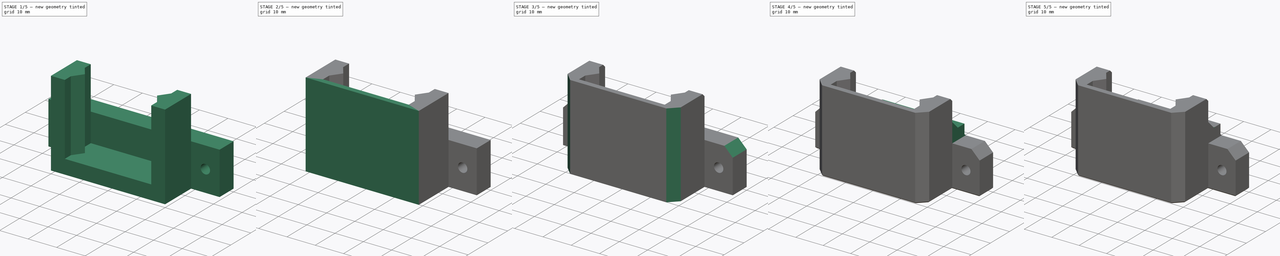
[diagram: build sequence overview — one tinted view per stage of 5, left to right]
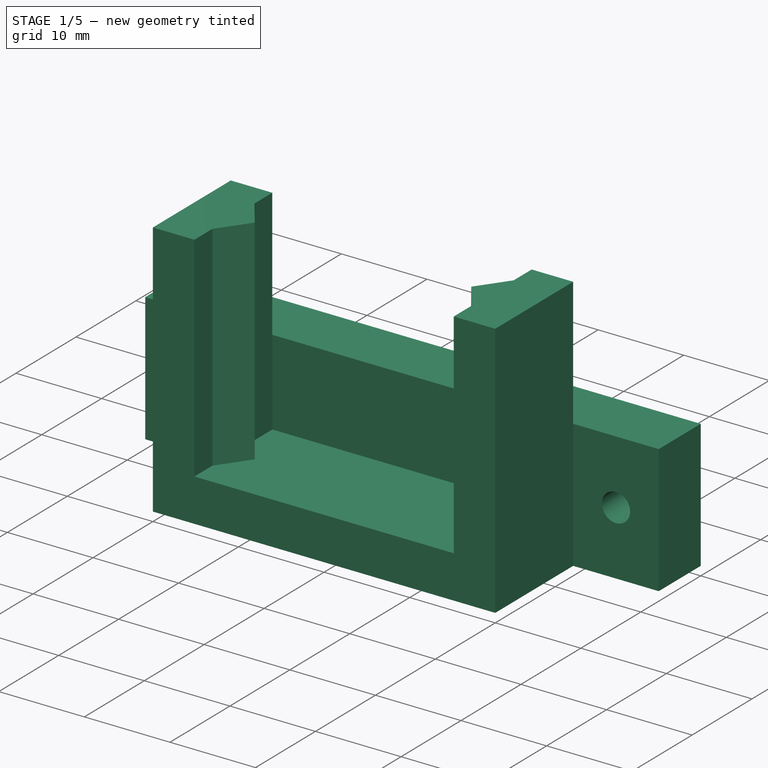
[diagram: stage 1 of 5 — iso view after this stage's code; geometry added in this stage tinted green]
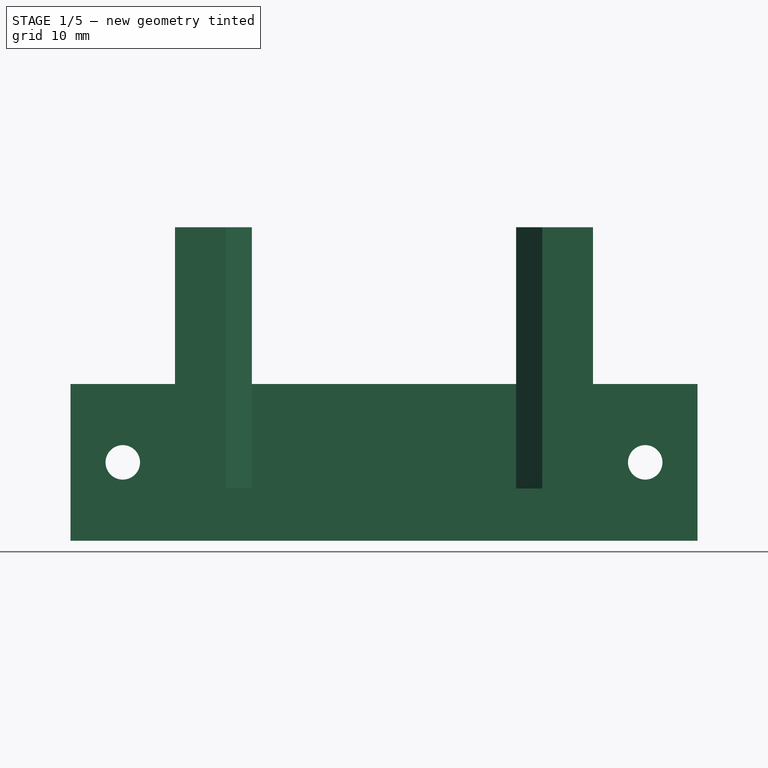
[diagram: stage 1 of 5 — front view after this stage's code; geometry added in this stage tinted green]
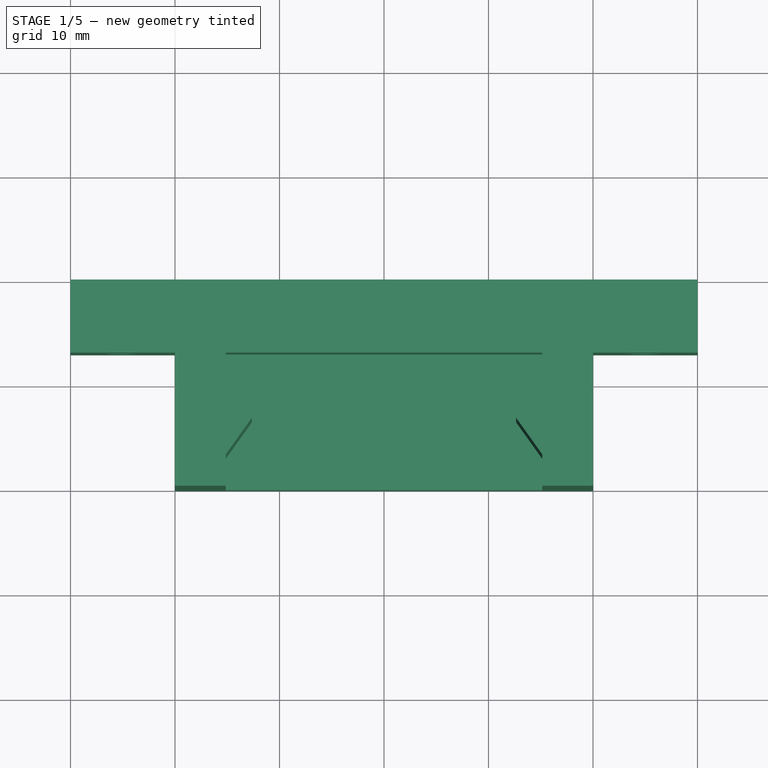
[diagram: stage 1 of 5 — top view after this stage's code; geometry added in this stage tinted green]
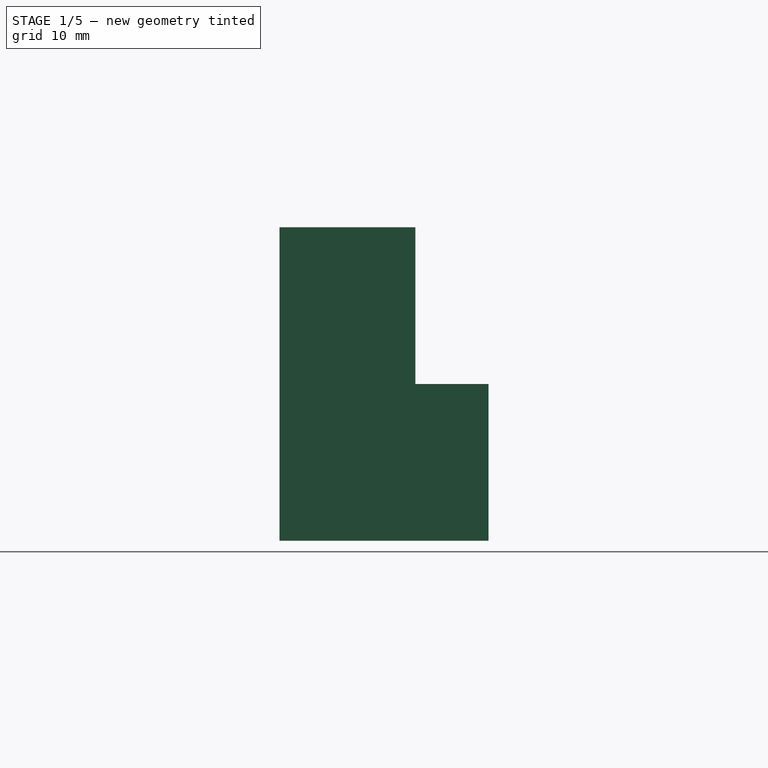
[diagram: stage 1 of 5 — right view after this stage's code; geometry added in this stage tinted green]
FCSTD DOCUMENT  (FreeCAD 0.19R24366 (Git))
Label: nozzle-brush-fixed
License: All rights reserved
LicenseURL: http://en.wikipedia.org/wiki/All_rights_reserved
objects: Sketcher::SketchObject×14, PartDesign::Pad×7, PartDesign::Pocket×7, PartDesign::Chamfer×4, PartDesign::Body×2, PartDesign::Mirrored×1
note: 53 computed .brp shape members not serialized (recipe doc carries the construction recipe); baked Part::Feature solids carry a one-line shape summary decoded from their .brp

FEATURE [Sketcher::SketchObject] Sketch
  FullyConstrained = true
  MapMode = 5
  Placement = pos=(0,0,0) rot=(1,0,0;1.5708rad)
  Support = -> [XZ_Plane]
  sketch-geometry (6):
    g0: LineSegment StartX=-30 StartY=0 StartZ=0 EndX=30 EndY=0 EndZ=0
    g1: LineSegment StartX=30 StartY=0 StartZ=0 EndX=30 EndY=15 EndZ=0
    g2: LineSegment StartX=30 StartY=15 StartZ=0 EndX=-30 EndY=15 EndZ=0
    g3: LineSegment StartX=-30 StartY=15 StartZ=0 EndX=-30 EndY=0 EndZ=0
    g4: Circle CenterX=-25 CenterY=7.5 CenterZ=0 NormalX=0 NormalY=0 NormalZ=1 AngleXU=0 Radius=1.65
    g5: Circle CenterX=25 CenterY=7.5 CenterZ=0 NormalX=0 NormalY=0 NormalZ=1 AngleXU=0 Radius=1.65
  constraints (18):
    c: Coincident(g0,g1)
    c: Coincident(g1,g2)
    c: Coincident(g2,g3)
    c: Coincident(g3,g0)
    c: Horizontal(g0)
    c: Horizontal(g2)
    c: Vertical(g1)
    c: Vertical(g3)
    c: PointOnObject(g0,g-1)
    c: Horizontal(g4,g5)
    c: DistanceY(g-1,g4) = 7.5
    c: Equal(g4,g5)
    c: Radius(g4) = 1.65
    c: DistanceX(g4,g-1) = 25
    c: DistanceX(g-1,g5) = 25
    c: DistanceY(g3,g3) = 15
    c: DistanceX(g2,g2) = 60
    c: DistanceX(g2,g-1) = 30
FEATURE [PartDesign::Pad] Pad
  Direction = (1,1,1)
  Length = 7
  Length2 = 100
  Placement = pos=(0,0,0) rot=(1,0,0;1.5708rad)
  Profile = -> Sketch
  Type = 0
FEATURE [Sketcher::SketchObject] Sketch001
  FullyConstrained = true
  MapMode = 5
  Placement = pos=(0,0,0) rot=(1,0,0;3.14159rad)
  Support = -> [Pad]
  sketch-geometry (4):
    g0: LineSegment StartX=-20 StartY=0 StartZ=0 EndX=20 EndY=0 EndZ=0
    g1: LineSegment StartX=20 StartY=0 StartZ=0 EndX=20 EndY=20 EndZ=0
    g2: LineSegment StartX=20 StartY=20 StartZ=0 EndX=-20 EndY=20 EndZ=0
    g3: LineSegment StartX=-20 StartY=20 StartZ=0 EndX=-20 EndY=0 EndZ=0
  constraints (12):
    c: Coincident(g0,g1)
    c: Coincident(g1,g2)
    c: Coincident(g2,g3)
    c: Coincident(g3,g0)
    c: Horizontal(g0)
    c: Horizontal(g2)
    c: Vertical(g1)
    c: Vertical(g3)
    c: PointOnObject(g0,g-1)
    c: DistanceX(g0,g-1) = 20
    c: DistanceX(g2,g2) = 40
    c: DistanceY(g3,g3) = 20
FEATURE [PartDesign::Pad] Pad001
  BaseFeature = -> Pad
  Direction = (1,1,1)
  Length = 5
  Length2 = 100
  Placement = pos=(0,0,0) rot=(1,0,0;1.5708rad)
  Profile = -> Sketch001
  Reversed = true
  Type = 0
FEATURE [Sketcher::SketchObject] Sketch002
  ExternalGeometry = -> [Pad001]
  FullyConstrained = true
  MapMode = 5
  Placement = pos=(0,5.6e-15,5) rot=(0,0,1;3.14159rad)
  Support = -> [Pad001]
  sketch-geometry (8):
    g0: LineSegment StartX=-20 StartY=20 StartZ=0 EndX=-15.15 EndY=20 EndZ=0
    g1: LineSegment StartX=-15.15 StartY=20 StartZ=0 EndX=-15.15 EndY=7 EndZ=0
    g2: LineSegment StartX=-15.15 StartY=7 StartZ=0 EndX=-20 EndY=7 EndZ=0
    g3: LineSegment StartX=-20 StartY=7 StartZ=0 EndX=-20 EndY=20 EndZ=0
    g4: LineSegment StartX=20 StartY=20 StartZ=0 EndX=15.15 EndY=20 EndZ=0
    g5: LineSegment StartX=15.15 StartY=20 StartZ=0 EndX=15.15 EndY=7 EndZ=0
    g6: LineSegment StartX=15.15 StartY=7 StartZ=0 EndX=20 EndY=7 EndZ=0
    g7: LineSegment StartX=20 StartY=7 StartZ=0 EndX=20 EndY=20 EndZ=0
  constraints (23):
    c: DistanceX(g-3,g-4) = 40
    c: Coincident(g0,g1)
    c: Coincident(g1,g2)
    c: Coincident(g2,g3)
    c: Coincident(g3,g0)
    c: Horizontal(g0)
    c: Horizontal(g2)
    c: Vertical(g1)
    c: Vertical(g3)
    c: Coincident(g0,g-3)
    c: Coincident(g4,g5)
    c: Coincident(g5,g6)
    c: Coincident(g6,g7)
    c: Coincident(g7,g4)
    c: Horizontal(g4)
    c: Horizontal(g6)
    c: Vertical(g5)
    c: Vertical(g7)
    c: Coincident(g4,g-4)
    c: Horizontal(g1,g5)
    c: Horizontal(g5,g-4)
    c: DistanceX(g0,g0) = 4.85
    c: Equal(g4,g0)
FEATURE [PartDesign::Pad] Pad002
  BaseFeature = -> Pad001
  Direction = (1,1,1)
  Length = 25
  Length2 = 100
  Placement = pos=(0,0,0) rot=(1,0,0;1.5708rad)
  Profile = -> Sketch002
  Type = 0
FEATURE [Sketcher::SketchObject] Sketch003
  ExternalGeometry = -> [Pad002]
  FullyConstrained = true
  MapMode = 5
  Placement = pos=(0,4.61e-14,30) rot=(0,0,1;3.14159rad)
  Support = -> [Pad002]
  sketch-geometry (6):
    g0: LineSegment StartX=-15.15 StartY=17 StartZ=0 EndX=-12.65 EndY=13.5 EndZ=0
    g1: LineSegment StartX=-12.65 StartY=13.5 StartZ=0 EndX=-15.15 EndY=10 EndZ=0
    g2: LineSegment StartX=-15.15 StartY=10 StartZ=0 EndX=-15.15 EndY=17 EndZ=0
    g3: LineSegment StartX=15.15 StartY=17 StartZ=0 EndX=12.65 EndY=13.5 EndZ=0
    g4: LineSegment StartX=12.65 StartY=13.5 StartZ=0 EndX=15.15 EndY=10 EndZ=0
    g5: LineSegment StartX=15.15 StartY=10 StartZ=0 EndX=15.15 EndY=17 EndZ=0
  constraints (19):
    c: PointOnObject(g0,g-3)
    c: Coincident(g0,g1)
    c: PointOnObject(g1,g-3)
    c: Coincident(g1,g2)
    c: Coincident(g2,g0)
    c: PointOnObject(g3,g-4)
    c: Coincident(g3,g4)
    c: PointOnObject(g4,g-4)
    c: Coincident(g4,g5)
    c: Coincident(g5,g3)
    c: Horizontal(g1,g4)
    c: Horizontal(g3,g0)
    c: Horizontal(g0,g3)
    c: DistanceY(g-3,g-3) = 13
    c: DistanceY(g0,g-3) = 3
    c: DistanceY(g-3,g1) = 3
    c: DistanceY(g0,g0) = 3.5
    c: DistanceX(g0,g0) = 2.5
    c: DistanceX(g3,g3) = 2.5
FEATURE [PartDesign::Pad] Pad003
  BaseFeature = -> Pad002
  Direction = (1,1,1)
  Length = 10
  Length2 = 100
  Placement = pos=(0,0,0) rot=(1,0,0;1.5708rad)
  Profile = -> Sketch003
  Reversed = true
  Type = 3
  UpToFace = -> Pad002 [Face26]
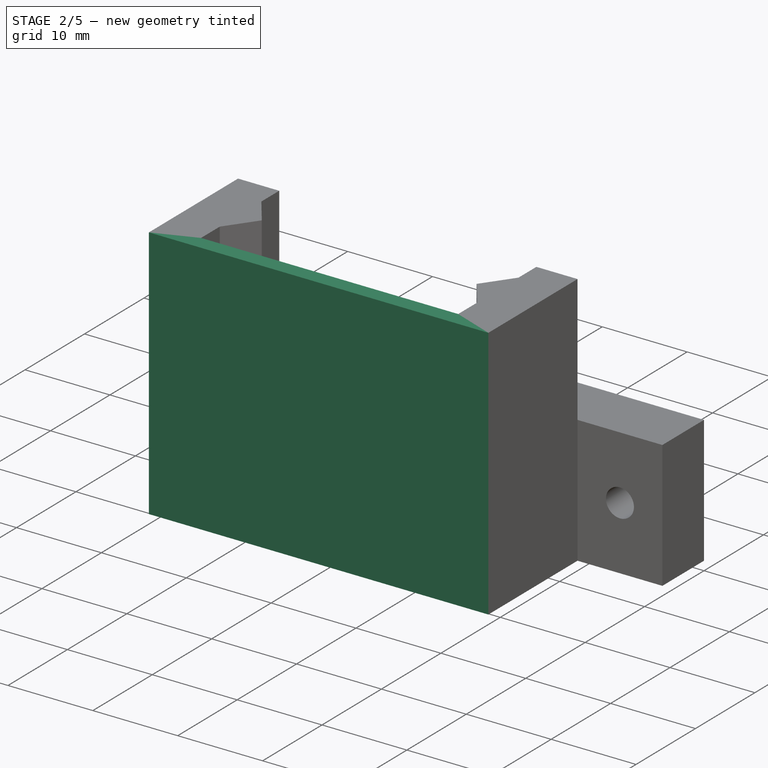
[diagram: stage 2 of 5 — iso view after this stage's code; geometry added in this stage tinted green]
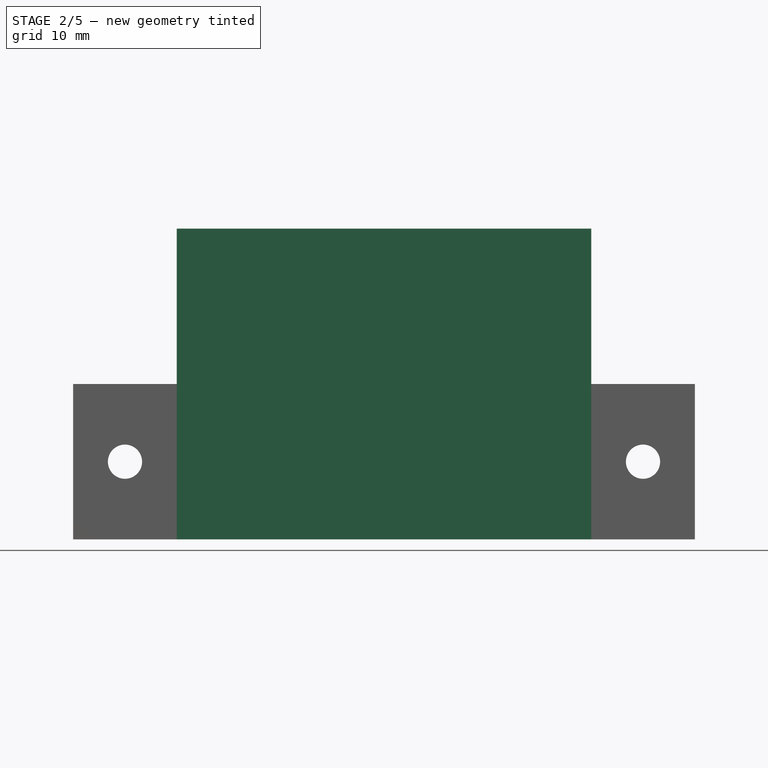
[diagram: stage 2 of 5 — front view after this stage's code; geometry added in this stage tinted green]
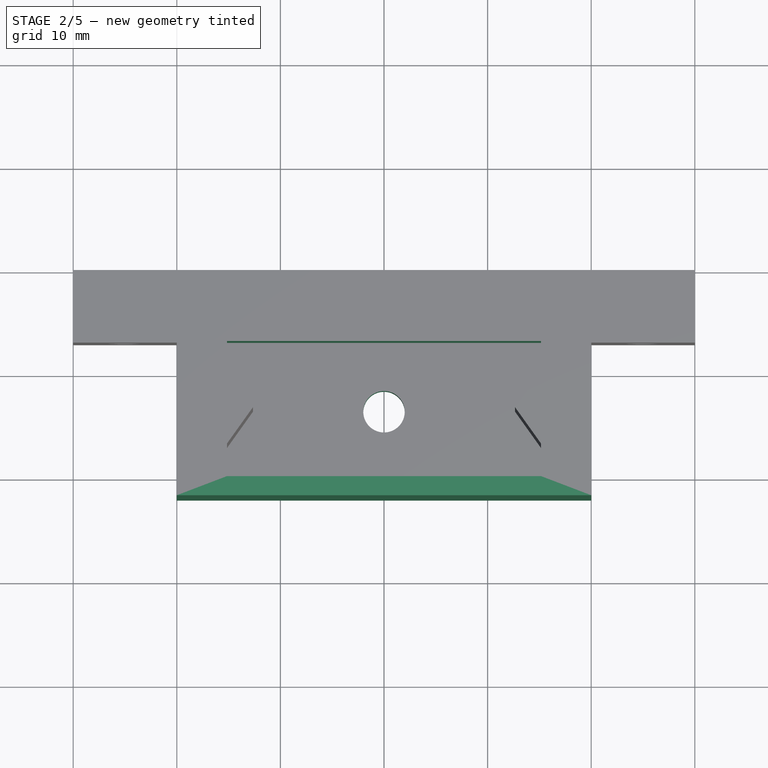
[diagram: stage 2 of 5 — top view after this stage's code; geometry added in this stage tinted green]
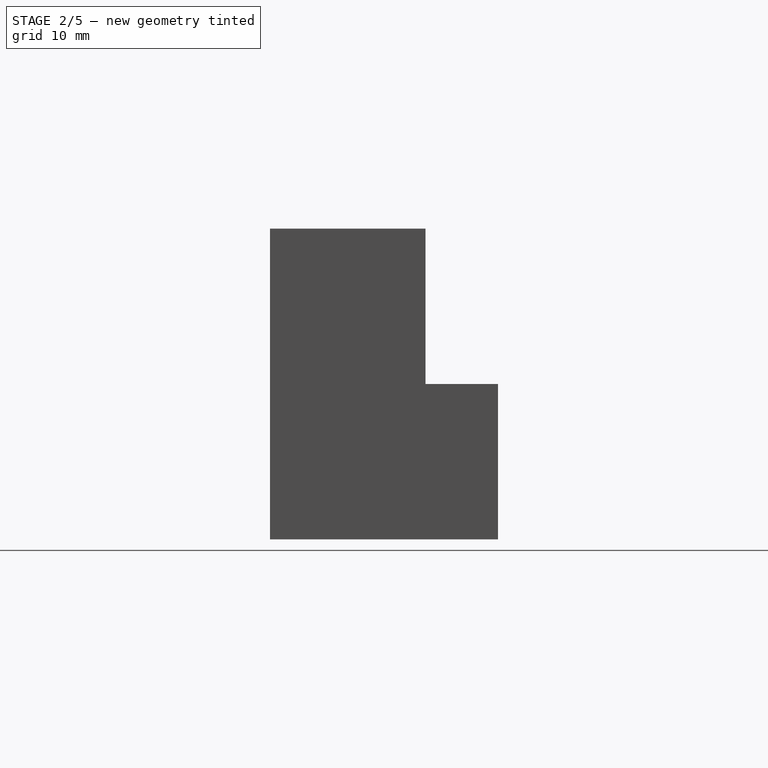
[diagram: stage 2 of 5 — right view after this stage's code; geometry added in this stage tinted green]
FEATURE [PartDesign::Body] Body001  label="brush-mounter"
  Group = -> [Sketch004,Pad004,Sketch005,Pocket,Sketch006,Pocket001,Sketch007,Pocket002,Sketch008,Pocket003]
  Origin = -> Origin001
  Placement = pos=(0,-13.5,10) rot=(0,0,1;0rad)
  Tip = -> Pocket003
FEATURE [Sketcher::SketchObject] Sketch009
  ExternalGeometry = -> [Pad003]
  FullyConstrained = true
  MapMode = 5
  Placement = pos=(0,3e-14,15) rot=(0,0,1;3.14159rad)
  Support = -> [Pad003]
  sketch-geometry (4):
    g0: LineSegment StartX=-15.15 StartY=7 StartZ=0 EndX=15.15 EndY=7 EndZ=0
    g1: LineSegment StartX=15.15 StartY=7 StartZ=0 EndX=15.15 EndY=6.85 EndZ=0
    g2: LineSegment StartX=15.15 StartY=6.85 StartZ=0 EndX=-15.15 EndY=6.85 EndZ=0
    g3: LineSegment StartX=-15.15 StartY=6.85 StartZ=0 EndX=-15.15 EndY=7 EndZ=0
  constraints (11):
    c: Coincident(g0,g1)
    c: Coincident(g1,g2)
    c: Coincident(g2,g3)
    c: Coincident(g3,g0)
    c: Horizontal(g0)
    c: Horizontal(g2)
    c: Vertical(g1)
    c: Vertical(g3)
    c: Coincident(g0,g-3)
    c: Vertical(g1,g-3)
    c: DistanceY(g1,g1) = 0.15
FEATURE [PartDesign::Pocket] Pocket004
  BaseFeature = -> Pad003
  Length = 0
  Length2 = 100
  Placement = pos=(0,0,0) rot=(1,0,0;1.5708rad)
  Profile = -> Sketch009
  Type = 3
  UpToFace = -> Pad003 [Face26]
FEATURE [Sketcher::SketchObject] Sketch010
  ExternalGeometry = -> [Pocket004]
  FullyConstrained = true
  MapMode = 5
  Placement = pos=(0,0,0) rot=(1,0,0;3.14159rad)
  Support = -> [Pocket004]
  sketch-geometry (4):
    g0: LineSegment StartX=-20 StartY=20 StartZ=0 EndX=20 EndY=20 EndZ=0
    g1: LineSegment StartX=20 StartY=20 StartZ=0 EndX=20 EndY=22 EndZ=0
    g2: LineSegment StartX=20 StartY=22 StartZ=0 EndX=-20 EndY=22 EndZ=0
    g3: LineSegment StartX=-20 StartY=22 StartZ=0 EndX=-20 EndY=20 EndZ=0
  constraints (10):
    c: Coincident(g0,g1)
    c: Coincident(g1,g2)
    c: Coincident(g2,g3)
    c: Coincident(g3,g0)
    c: Horizontal(g2)
    c: Vertical(g1)
    c: Vertical(g3)
    c: Coincident(g0,g-3)
    c: Coincident(g0,g-3)
    c: DistanceY(g1,g1) = 2
FEATURE [PartDesign::Pad] Pad005
  BaseFeature = -> Pocket004
  Direction = (1,1,1)
  Length = 10
  Length2 = 100
  Placement = pos=(0,0,0) rot=(1,0,0;1.5708rad)
  Profile = -> Sketch010
  Type = 3
  UpToFace = -> Pocket004 [Face24]
FEATURE [Sketcher::SketchObject] Sketch011
  ExternalGeometry = -> [Pad005]
  FullyConstrained = true
  MapMode = 5
  Placement = pos=(0,8.61e-14,30) rot=(0,0,1;3.14159rad)
  Support = -> [Pad005]
  sketch-geometry (4):
    g0: LineSegment StartX=-15.15 StartY=20 StartZ=0 EndX=15.15 EndY=20 EndZ=0
    g1: LineSegment StartX=15.15 StartY=20 StartZ=0 EndX=15.15 EndY=20.15 EndZ=0
    g2: LineSegment StartX=15.15 StartY=20.15 StartZ=0 EndX=-15.15 EndY=20.15 EndZ=0
    g3: LineSegment StartX=-15.15 StartY=20.15 StartZ=0 EndX=-15.15 EndY=20 EndZ=0
  constraints (10):
    c: Coincident(g0,g1)
    c: Coincident(g1,g2)
    c: Coincident(g2,g3)
    c: Coincident(g3,g0)
    c: Horizontal(g2)
    c: Vertical(g1)
    c: Vertical(g3)
    c: Coincident(g0,g-3)
    c: Coincident(g0,g-3)
    c: DistanceY(g1,g1) = 0.15
FEATURE [PartDesign::Pocket] Pocket005
  BaseFeature = -> Pad005
  Length = 0
  Length2 = 100
  Placement = pos=(0,0,0) rot=(1,0,0;1.5708rad)
  Profile = -> Sketch011
  Refine = true
  Type = 3
  UpToFace = -> Pad005 [Face35]
FEATURE [Sketcher::SketchObject] Sketch012
  FullyConstrained = true
  MapMode = 5
  Placement = pos=(0,1.67e-14,5) rot=(0,0,1;3.14159rad)
  Support = -> [Pocket005]
  sketch-geometry (1):
    g0: Circle CenterX=0 CenterY=13.5 CenterZ=0 NormalX=0 NormalY=0 NormalZ=1 AngleXU=0 Radius=2
  constraints (3):
    c: PointOnObject(g0,g-2)
    c: DistanceY(g-1,g0) = 13.5
    c: Radius(g0) = 2
FEATURE [PartDesign::Pocket] Pocket006
  BaseFeature = -> Pocket005
  Length = 5
  Length2 = 100
  Placement = pos=(0,0,0) rot=(1,0,0;1.5708rad)
  Profile = -> Sketch012
  Refine = true
  Type = 1
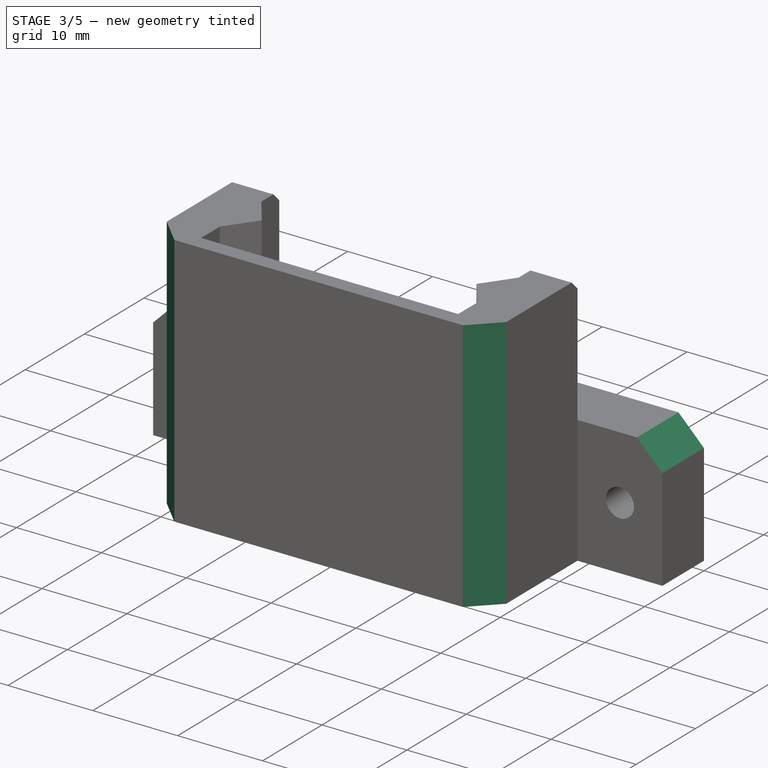
[diagram: stage 3 of 5 — iso view after this stage's code; geometry added in this stage tinted green]
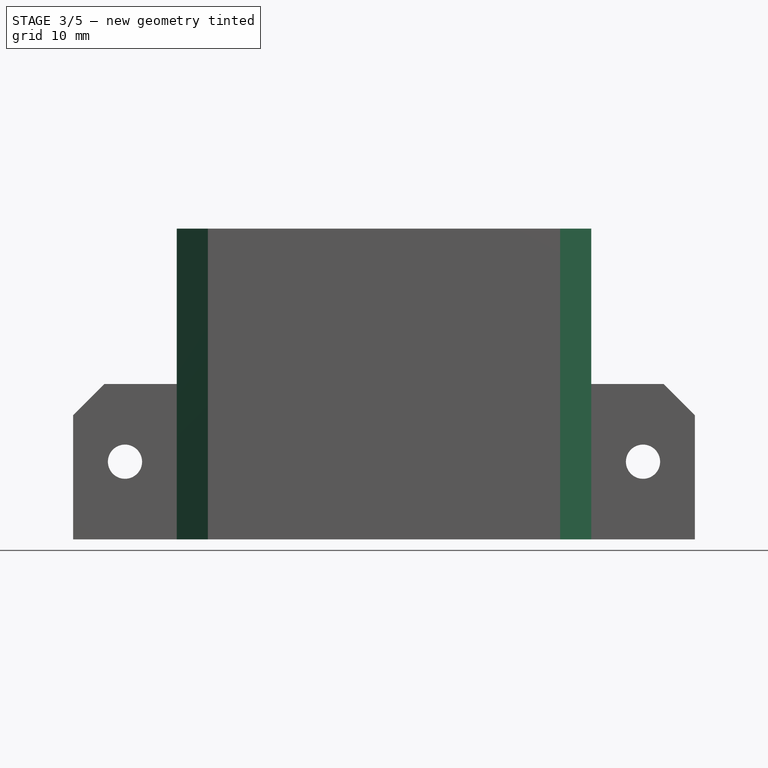
[diagram: stage 3 of 5 — front view after this stage's code; geometry added in this stage tinted green]
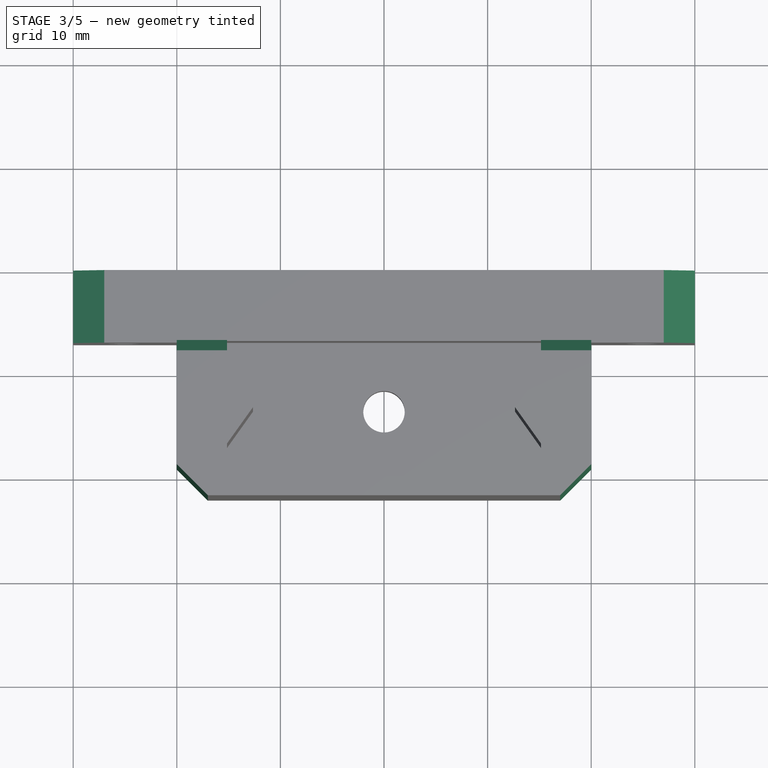
[diagram: stage 3 of 5 — top view after this stage's code; geometry added in this stage tinted green]
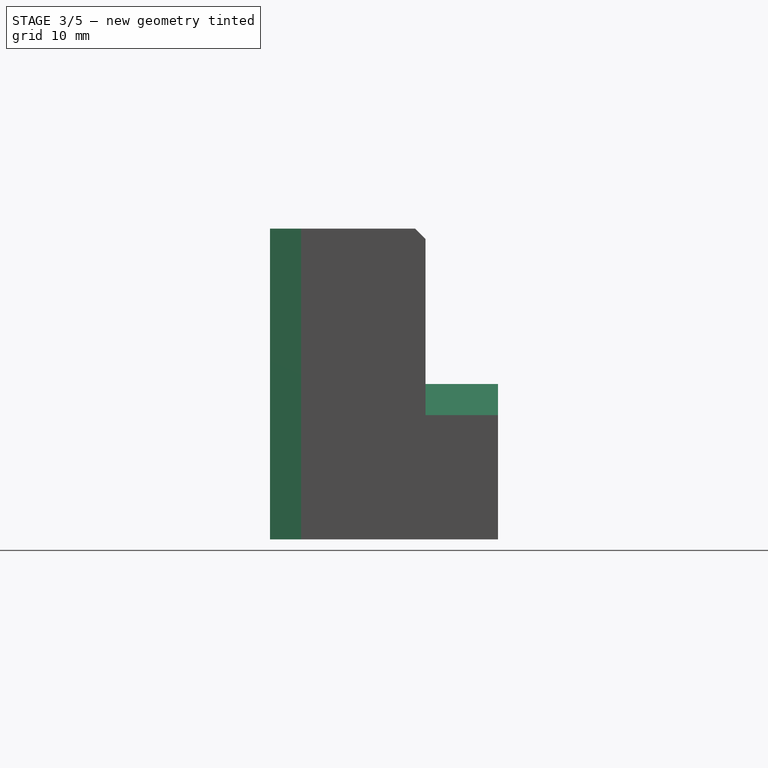
[diagram: stage 3 of 5 — right view after this stage's code; geometry added in this stage tinted green]
FEATURE [PartDesign::Chamfer] Chamfer
  Angle = 45
  Base = -> Pocket006 [Edge41,Edge43]
  BaseFeature = -> Pocket006
  ChamferType = 0
  FlipDirection = false
  Placement = pos=(0,0,0) rot=(1,0,0;1.5708rad)
  Size = 3
  Size2 = 1
  SupportTransform = false
FEATURE [PartDesign::Chamfer] Chamfer001
  Angle = 45
  Base = -> Chamfer [Edge44,Edge40]
  BaseFeature = -> Chamfer
  ChamferType = 0
  FlipDirection = false
  Placement = pos=(0,0,0) rot=(1,0,0;1.5708rad)
  Size = 1
  Size2 = 1
  SupportTransform = false
FEATURE [PartDesign::Chamfer] Chamfer002
  Angle = 45
  Base = -> Chamfer001 [Edge74,Edge70]
  BaseFeature = -> Chamfer001
  ChamferType = 0
  FlipDirection = false
  Placement = pos=(0,0,0) rot=(1,0,0;1.5708rad)
  Size = 3
  Size2 = 1
  SupportTransform = false
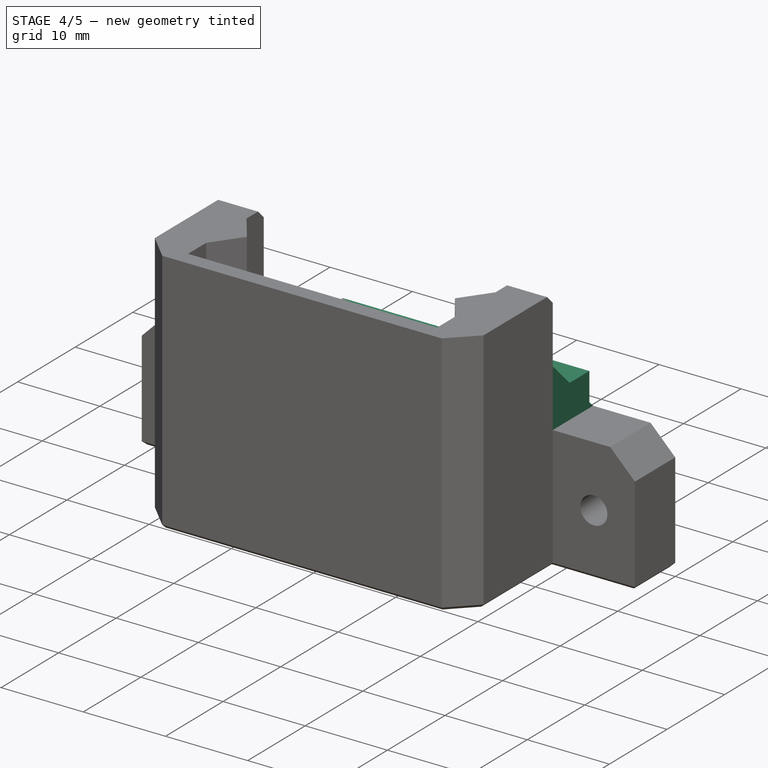
[diagram: stage 4 of 5 — iso view after this stage's code; geometry added in this stage tinted green]
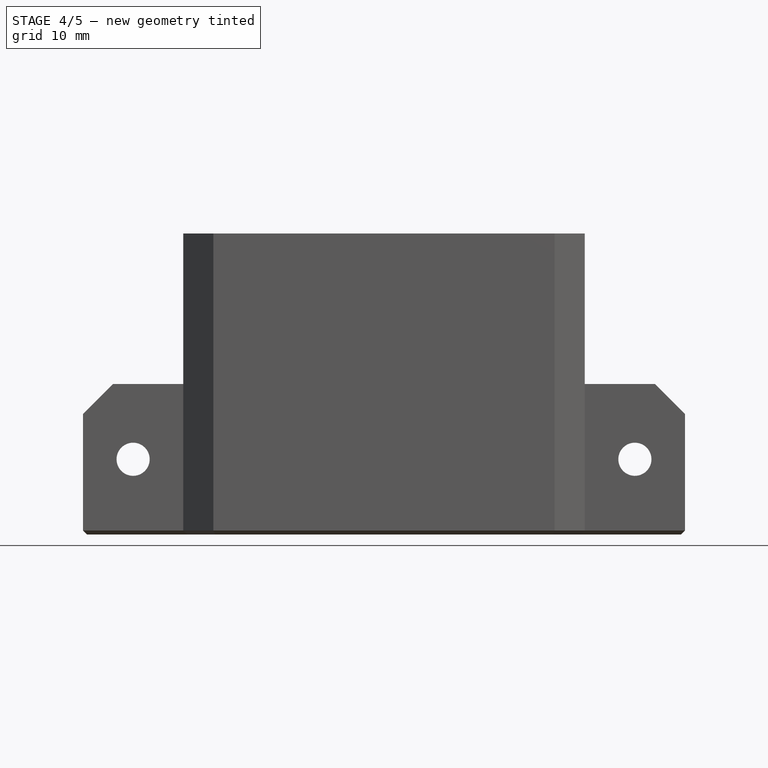
[diagram: stage 4 of 5 — front view after this stage's code; geometry added in this stage tinted green]
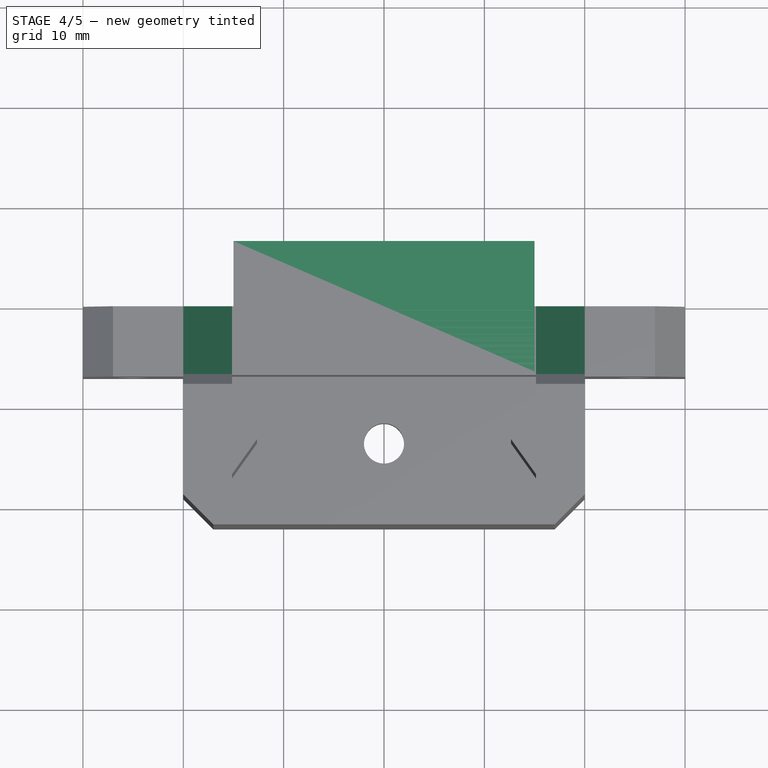
[diagram: stage 4 of 5 — top view after this stage's code; geometry added in this stage tinted green]
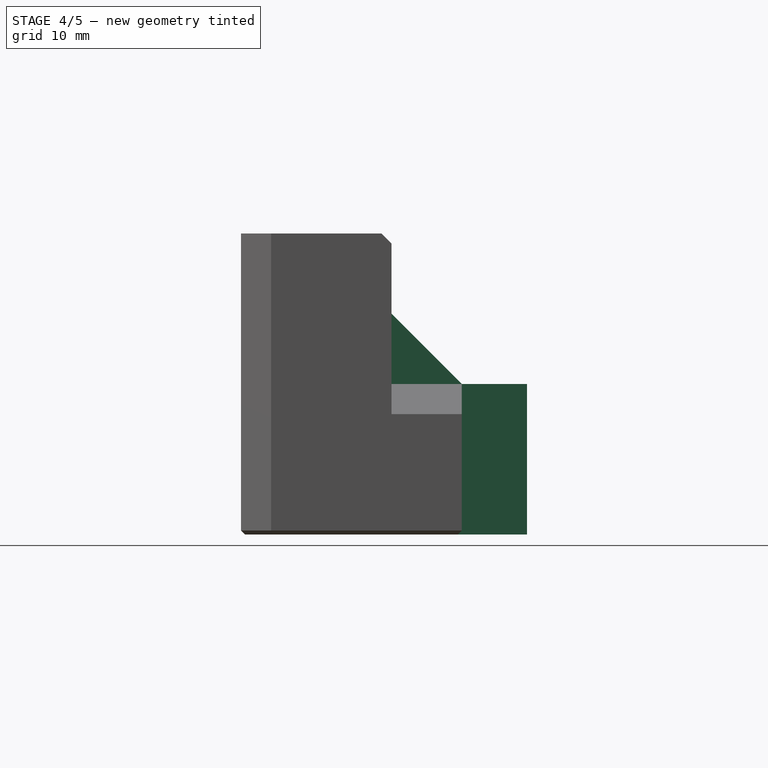
[diagram: stage 4 of 5 — right view after this stage's code; geometry added in this stage tinted green]
FEATURE [Sketcher::SketchObject] Sketch004
  FullyConstrained = true
  MapMode = 5
  Support = -> [XY_Plane001]
  sketch-geometry (4):
    g0: LineSegment StartX=-15 StartY=6.5 StartZ=0 EndX=15 EndY=6.5 EndZ=0
    g1: LineSegment StartX=15 StartY=6.5 StartZ=0 EndX=15 EndY=-6.5 EndZ=0
    g2: LineSegment StartX=15 StartY=-6.5 StartZ=0 EndX=-15 EndY=-6.5 EndZ=0
    g3: LineSegment StartX=-15 StartY=-6.5 StartZ=0 EndX=-15 EndY=6.5 EndZ=0
  constraints (12):
    c: Coincident(g0,g1)
    c: Coincident(g1,g2)
    c: Coincident(g2,g3)
    c: Coincident(g3,g0)
    c: Horizontal(g0)
    c: Horizontal(g2)
    c: Vertical(g1)
    c: Vertical(g3)
    c: DistanceX(g2,g2) = 30
    c: DistanceX(g2,g-1) = 15
    c: DistanceY(g3,g3) = 13
    c: DistanceY(g2,g-1) = 6.5
FEATURE [PartDesign::Pad] Pad004
  Direction = (1,1,1)
  Length = 15
  Length2 = 100
  Profile = -> Sketch004
  Type = 0
FEATURE [PartDesign::Chamfer] Chamfer003
  Angle = 45
  Base = -> Chamfer002 [Face6]
  BaseFeature = -> Chamfer002
  ChamferType = 0
  FlipDirection = false
  Placement = pos=(0,0,0) rot=(1,0,0;1.5708rad)
  Size = 0.4
  Size2 = 1
  SupportTransform = false
FEATURE [Sketcher::SketchObject] Sketch013
  ExternalGeometry = -> [Chamfer003]
  FullyConstrained = true
  MapMode = 5
  Placement = pos=(-20,1.15e-14,0) rot=(0.707107,0,-0.707107;3.14159rad)
  Support = -> [Chamfer003]
  sketch-geometry (3):
    g0: LineSegment StartX=-22 StartY=7 StartZ=0 EndX=-15 EndY=-4.09e-14 EndZ=0
    g1: LineSegment StartX=-15 StartY=-4.12e-14 StartZ=0 EndX=-15 EndY=7 EndZ=0
    g2: LineSegment StartX=-15 StartY=7 StartZ=0 EndX=-22 EndY=7 EndZ=0
  constraints (7):
    c: PointOnObject(g0,g-4)
    c: Coincident(g0,g-3)
    c: Coincident(g0,g1)
    c: Coincident(g1,g-4)
    c: Coincident(g1,g2)
    c: Coincident(g2,g0)
    c: Equal(g2,g1)
FEATURE [PartDesign::Pad] Pad006
  BaseFeature = -> Chamfer003
  Direction = (1,1,1)
  Length = 4.85
  Length2 = 100
  Placement = pos=(0,0,0) rot=(1,0,0;1.5708rad)
  Profile = -> Sketch013
  Reversed = true
  Type = 0
FEATURE [PartDesign::Mirrored] Mirrored
  BaseFeature = -> Pad006
  MirrorPlane = -> YZ_Plane
  Originals = -> [Pad006]
  Placement = pos=(0,0,0) rot=(1,0,0;1.5708rad)
FEATURE [PartDesign::Body] Body  label="base"
  Group = -> [Sketch,Pad,Sketch001,Pad001,Sketch002,Pad002,Sketch003,Pad003,Sketch009,Pocket004,Sketch010,Pad005,Sketch011,Pocket005,Sketch012,Pocket006,Chamfer,Chamfer001,Chamfer002,Chamfer003,Sketch013,Pad006,Mirrored]
  Origin = -> Origin
  Tip = -> Mirrored
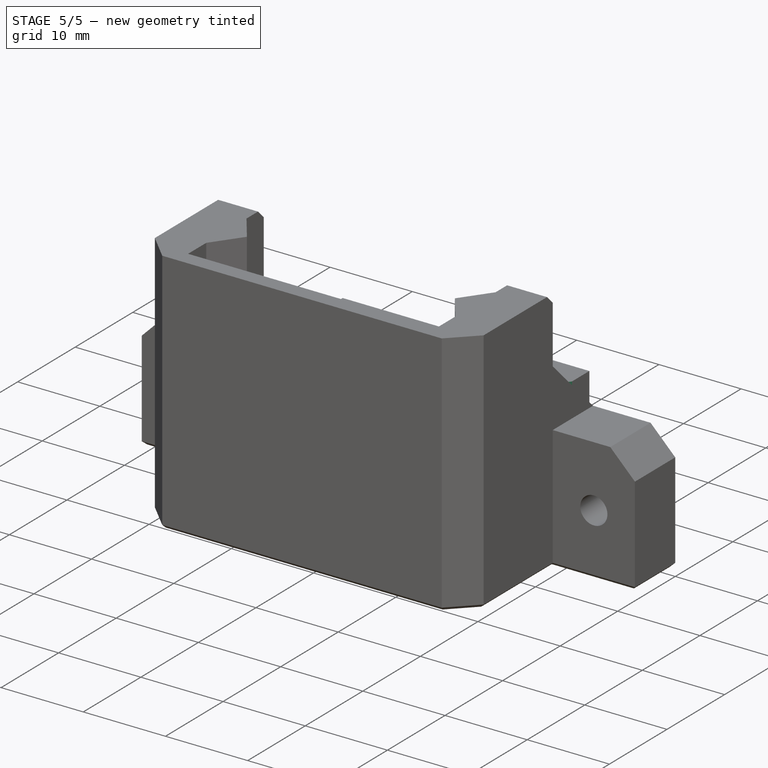
[diagram: stage 5 of 5 — iso view after this stage's code; geometry added in this stage tinted green]
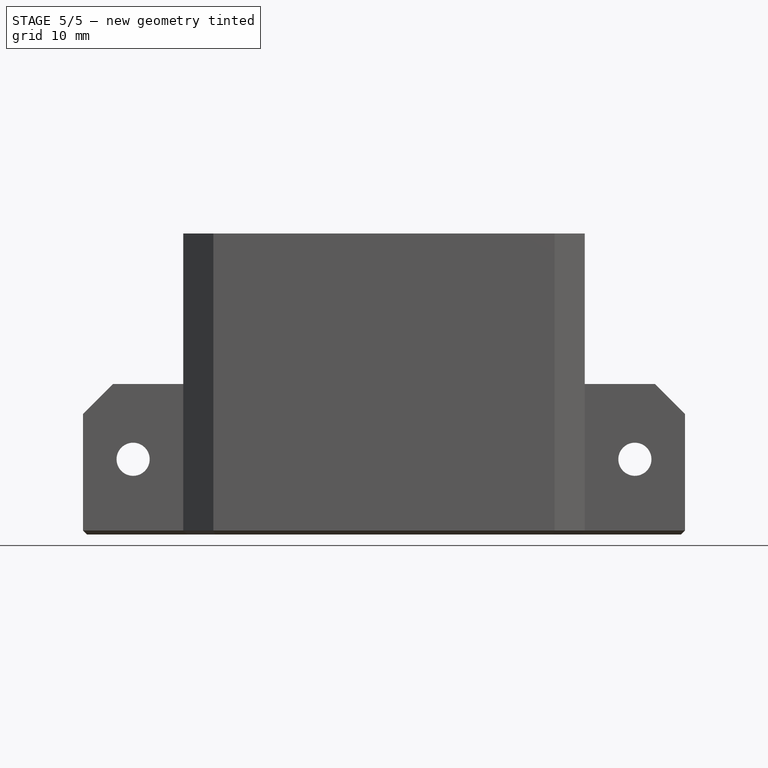
[diagram: stage 5 of 5 — front view after this stage's code; geometry added in this stage tinted green]
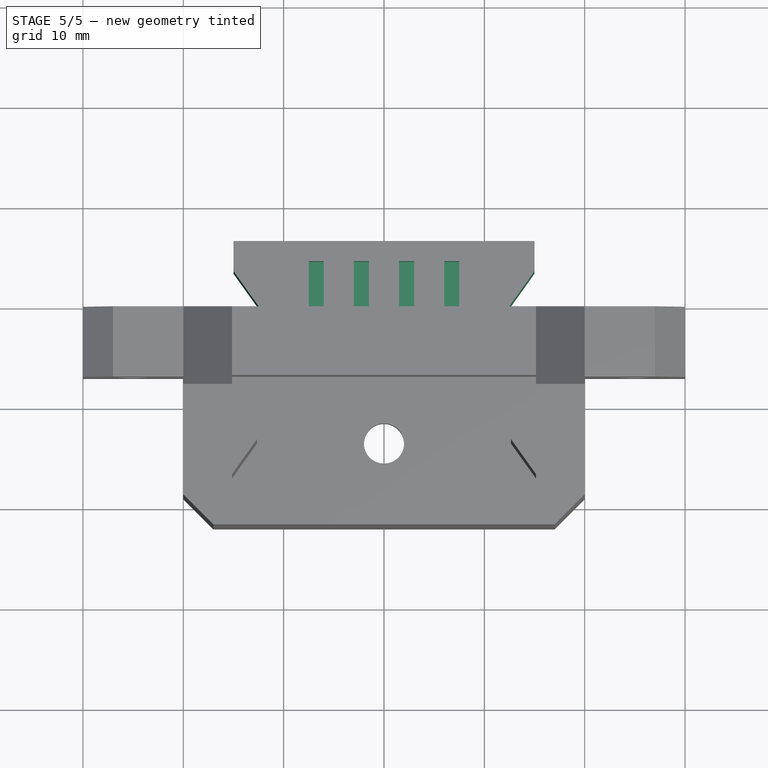
[diagram: stage 5 of 5 — top view after this stage's code; geometry added in this stage tinted green]
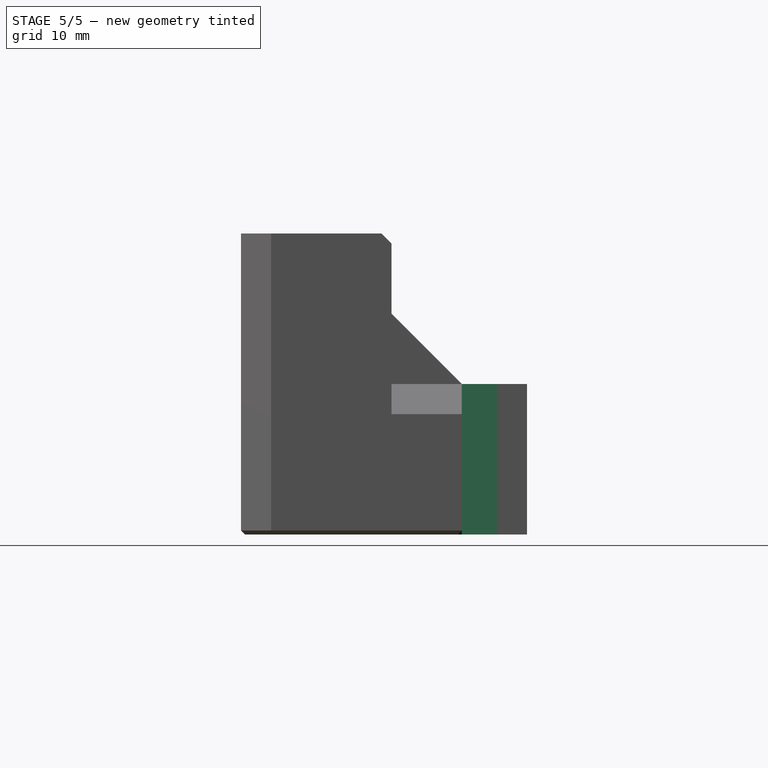
[diagram: stage 5 of 5 — right view after this stage's code; geometry added in this stage tinted green]
FEATURE [Sketcher::SketchObject] Sketch005
  ExternalGeometry = -> [Pad004]
  FullyConstrained = true
  MapMode = 5
  Placement = pos=(0,0,15) rot=(0,0,1;0rad)
  Support = -> [Pad004]
  sketch-geometry (6):
    g0: LineSegment StartX=-15 StartY=3.5 StartZ=0 EndX=-12.5 EndY=0 EndZ=0
    g1: LineSegment StartX=-12.5 StartY=0 StartZ=0 EndX=-15 EndY=-3.5 EndZ=0
    g2: LineSegment StartX=-15 StartY=-3.5 StartZ=0 EndX=-15 EndY=3.5 EndZ=0
    g3: LineSegment StartX=15 StartY=3.5 StartZ=0 EndX=12.5 EndY=0 EndZ=0
    g4: LineSegment StartX=12.5 StartY=0 StartZ=0 EndX=15 EndY=-3.5 EndZ=0
    g5: LineSegment StartX=15 StartY=-3.5 StartZ=0 EndX=15 EndY=3.5 EndZ=0
  constraints (18):
    c: PointOnObject(g0,g-4)
    c: PointOnObject(g0,g-1)
    c: Coincident(g0,g1)
    c: PointOnObject(g1,g-4)
    c: Coincident(g1,g2)
    c: Coincident(g2,g0)
    c: PointOnObject(g3,g-3)
    c: PointOnObject(g3,g-1)
    c: Coincident(g3,g4)
    c: PointOnObject(g4,g-3)
    c: Coincident(g4,g5)
    c: Coincident(g5,g3)
    c: Horizontal(g0,g3)
    c: Horizontal(g4,g1)
    c: DistanceY(g0,g-4) = 3
    c: DistanceY(g-5,g1) = 3
    c: DistanceX(g1,g0) = 2.5
    c: DistanceX(g3,g4) = 2.5
FEATURE [PartDesign::Pocket] Pocket
  BaseFeature = -> Pad004
  Length = 5
  Length2 = 100
  Profile = -> Sketch005
  Type = 1
FEATURE [Sketcher::SketchObject] Sketch006
  ExternalGeometry = -> [Pocket]
  FullyConstrained = true
  MapMode = 5
  Placement = pos=(0,-6.5,0) rot=(1,0,0;1.5708rad)
  Support = -> [Pocket]
  sketch-geometry (4):
    g0: LineSegment StartX=-10 StartY=12 StartZ=0 EndX=10 EndY=12 EndZ=0
    g1: LineSegment StartX=10 StartY=12 StartZ=0 EndX=10 EndY=10.5 EndZ=0
    g2: LineSegment StartX=10 StartY=10.5 StartZ=0 EndX=-10 EndY=10.5 EndZ=0
    g3: LineSegment StartX=-10 StartY=10.5 StartZ=0 EndX=-10 EndY=12 EndZ=0
  constraints (12):
    c: Coincident(g0,g1)
    c: Coincident(g1,g2)
    c: Coincident(g2,g3)
    c: Coincident(g3,g0)
    c: Horizontal(g0)
    c: Horizontal(g2)
    c: Vertical(g1)
    c: Vertical(g3)
    c: DistanceY(g0,g-3) = 3
    c: DistanceY(g3,g3) = 1.5
    c: DistanceX(g0,g0) = 20
    c: DistanceX(g2,g-1) = 10
FEATURE [PartDesign::Pocket] Pocket001
  BaseFeature = -> Pocket
  Length = 11
  Length2 = 100
  Profile = -> Sketch006
  Type = 0
FEATURE [Sketcher::SketchObject] Sketch007
  ExternalGeometry = -> [Pocket001]
  FullyConstrained = true
  MapMode = 5
  Placement = pos=(0,0,15) rot=(0,0,1;0rad)
  Support = -> [Pocket001]
  sketch-geometry (16):
    g0: LineSegment StartX=-7.5 StartY=-6.5 StartZ=0 EndX=-6 EndY=-6.5 EndZ=0
    g1: LineSegment StartX=-6 StartY=-6.5 StartZ=0 EndX=-6 EndY=4.5 EndZ=0
    g2: LineSegment StartX=-6 StartY=4.5 StartZ=0 EndX=-7.5 EndY=4.5 EndZ=0
    g3: LineSegment StartX=-7.5 StartY=4.5 StartZ=0 EndX=-7.5 EndY=-6.5 EndZ=0
    g4: LineSegment StartX=-3 StartY=-6.5 StartZ=0 EndX=-1.5 EndY=-6.5 EndZ=0
    g5: LineSegment StartX=-1.5 StartY=-6.5 StartZ=0 EndX=-1.5 EndY=4.5 EndZ=0
    g6: LineSegment StartX=-1.5 StartY=4.5 StartZ=0 EndX=-3 EndY=4.5 EndZ=0
    g7: LineSegment StartX=-3 StartY=4.5 StartZ=0 EndX=-3 EndY=-6.5 EndZ=0
    g8: LineSegment StartX=1.5 StartY=-6.5 StartZ=0 EndX=3 EndY=-6.5 EndZ=0
    g9: LineSegment StartX=3 StartY=-6.5 StartZ=0 EndX=3 EndY=4.5 EndZ=0
    g10: LineSegment StartX=3 StartY=4.5 StartZ=0 EndX=1.5 EndY=4.5 EndZ=0
    g11: LineSegment StartX=1.5 StartY=4.5 StartZ=0 EndX=1.5 EndY=-6.5 EndZ=0
    g12: LineSegment StartX=6 StartY=-6.5 StartZ=0 EndX=7.5 EndY=-6.5 EndZ=0
    g13: LineSegment StartX=7.5 StartY=-6.5 StartZ=0 EndX=7.5 EndY=4.5 EndZ=0
    g14: LineSegment StartX=7.5 StartY=4.5 StartZ=0 EndX=6 EndY=4.5 EndZ=0
    g15: LineSegment StartX=6 StartY=4.5 StartZ=0 EndX=6 EndY=-6.5 EndZ=0
  constraints (48):
    c: Coincident(g0,g1)
    c: Coincident(g1,g2)
    c: Coincident(g2,g3)
    c: Coincident(g3,g0)
    c: Horizontal(g0)
    c: Horizontal(g2)
    c: Vertical(g1)
    c: Vertical(g3)
    c: PointOnObject(g0,g-3)
    c: Coincident(g4,g5)
    c: Coincident(g5,g6)
    c: Coincident(g6,g7)
    c: Coincident(g7,g4)
    c: Horizontal(g4)
    c: Horizontal(g6)
    c: Vertical(g5)
    c: Vertical(g7)
    c: PointOnObject(g4,g-3)
    c: Coincident(g8,g9)
    c: Coincident(g9,g10)
    c: Coincident(g10,g11)
    c: Coincident(g11,g8)
    c: Horizontal(g8)
    c: Horizontal(g10)
    c: Vertical(g9)
    c: Vertical(g11)
    c: PointOnObject(g8,g-3)
    c: Coincident(g12,g13)
    c: Coincident(g13,g14)
    c: Coincident(g14,g15)
    c: Coincident(g15,g12)
    c: Horizontal(g12)
    c: Horizontal(g14)
    c: Vertical(g13)
    c: Vertical(g15)
    c: PointOnObject(g12,g-3)
    c: Horizontal(g1,g5)
    c: Horizontal(g5,g9)
    c: Horizontal(g9,g13)
    c: DistanceY(g3,g3) = 11
    c: DistanceX(g5,g-1) = 1.5
    c: DistanceX(g5,g10) = 3
    c: DistanceX(g1,g6) = 3
    c: DistanceX(g9,g14) = 3
    c: Equal(g14,g10)
    c: Equal(g10,g6)
    c: Equal(g6,g2)
    c: DistanceX(g14,g14) = 1.5
FEATURE [PartDesign::Pocket] Pocket002
  BaseFeature = -> Pocket001
  Length = 0
  Length2 = 100
  Profile = -> Sketch007
  Type = 3
  UpToFace = -> Pocket001 [Face16]
FEATURE [Sketcher::SketchObject] Sketch008
  FullyConstrained = true
  MapMode = 5
  Placement = pos=(0,0,0) rot=(1,0,0;3.14159rad)
  Support = -> [Pocket002]
  sketch-geometry (1):
    g0: Circle CenterX=0 CenterY=0 CenterZ=0 NormalX=0 NormalY=0 NormalZ=1 AngleXU=0 Radius=1.65
  constraints (2):
    c: Coincident(g0,g-1)
    c: Radius(g0) = 1.65
FEATURE [PartDesign::Pocket] Pocket003
  BaseFeature = -> Pocket002
  Length = 5
  Length2 = 100
  Profile = -> Sketch008
  Type = 0
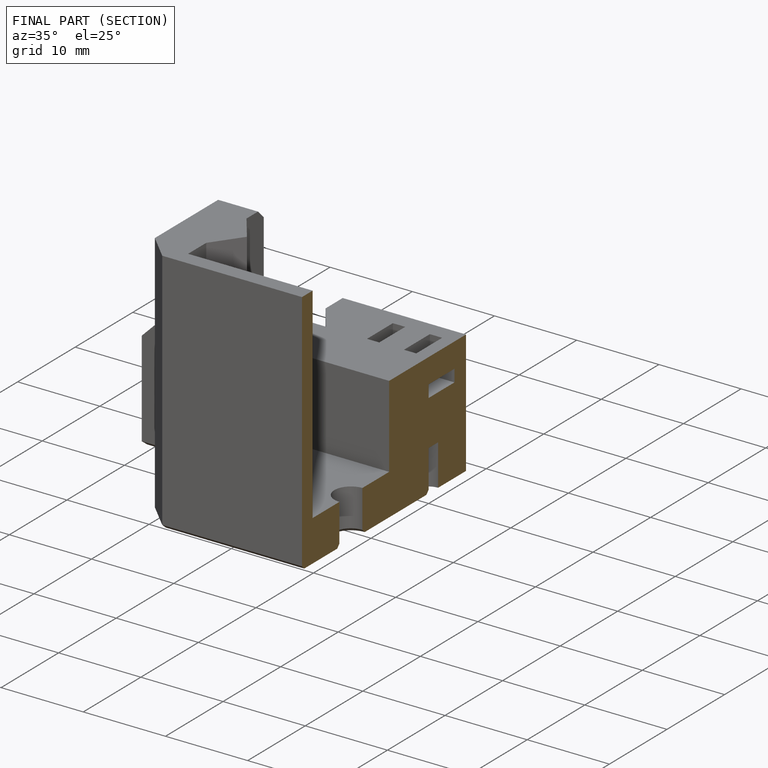
[diagram: finished part — half-section view (interior)]
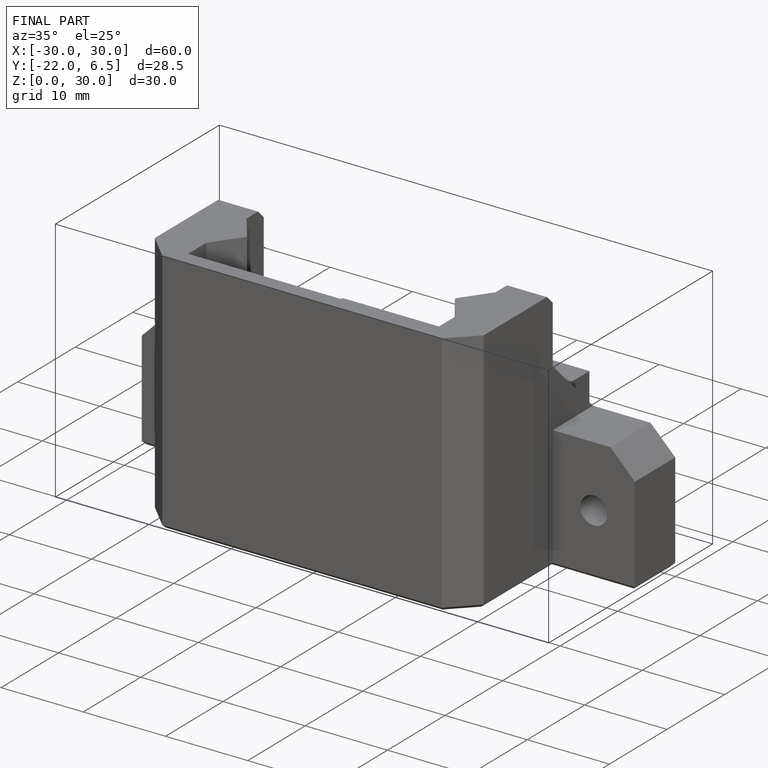
[diagram: finished part — iso view with bounding-box wireframe]
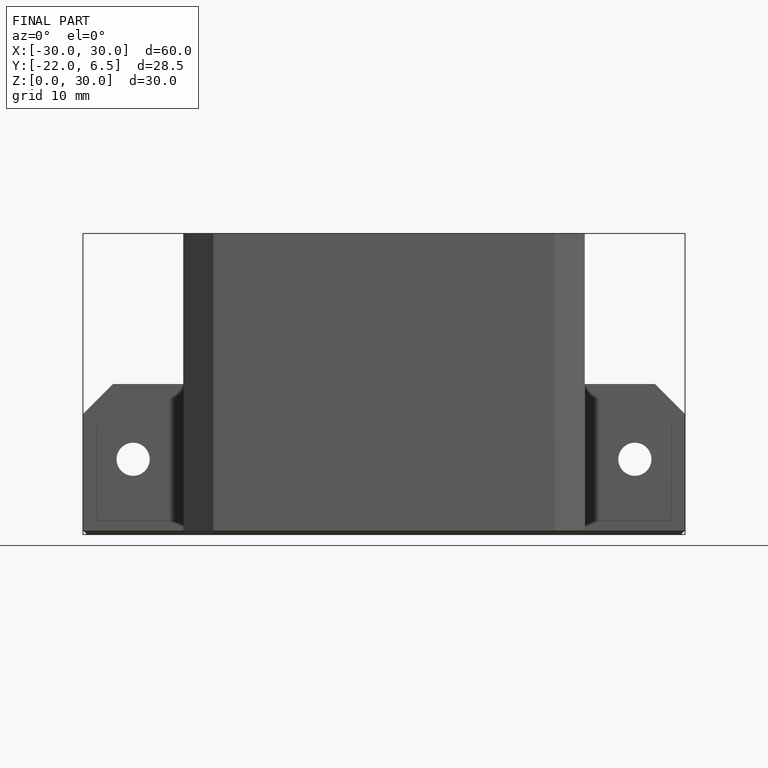
[diagram: finished part — front view with bounding-box wireframe]
